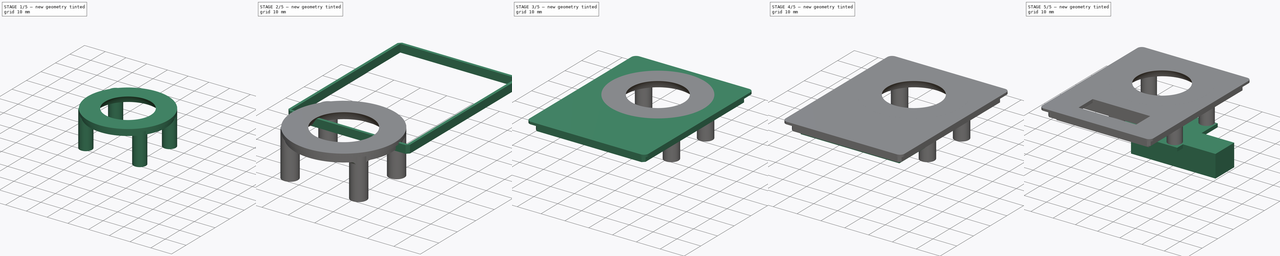
[diagram: build sequence overview — one tinted view per stage of 5, left to right]
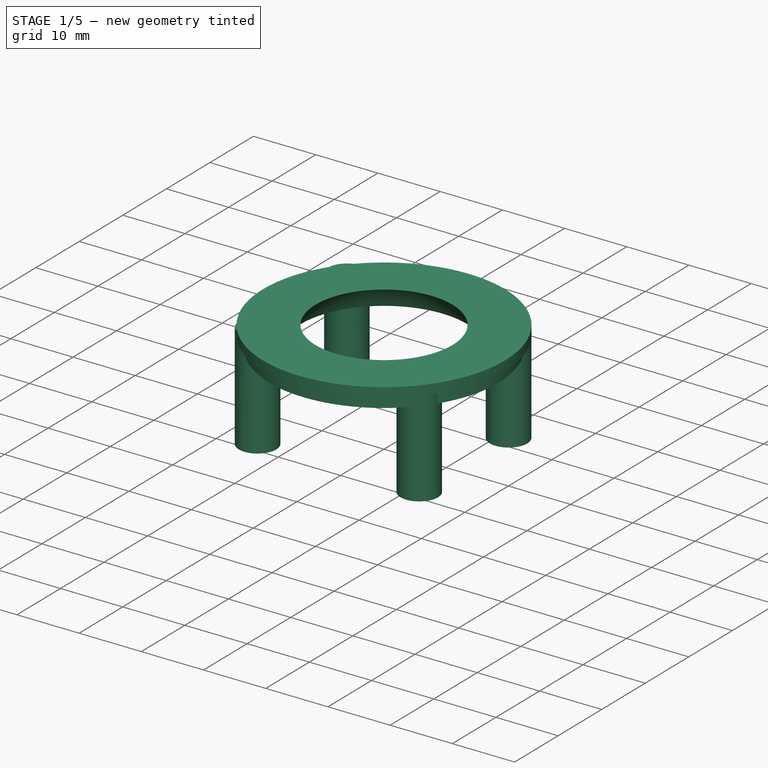
[diagram: stage 1 of 5 — iso view after this stage's code; geometry added in this stage tinted green]
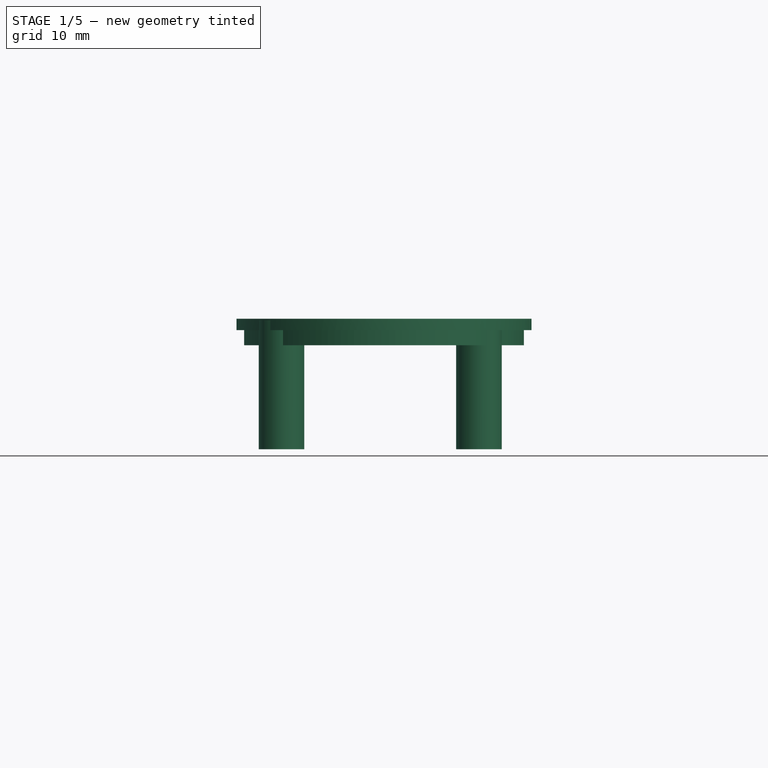
[diagram: stage 1 of 5 — front view after this stage's code; geometry added in this stage tinted green]
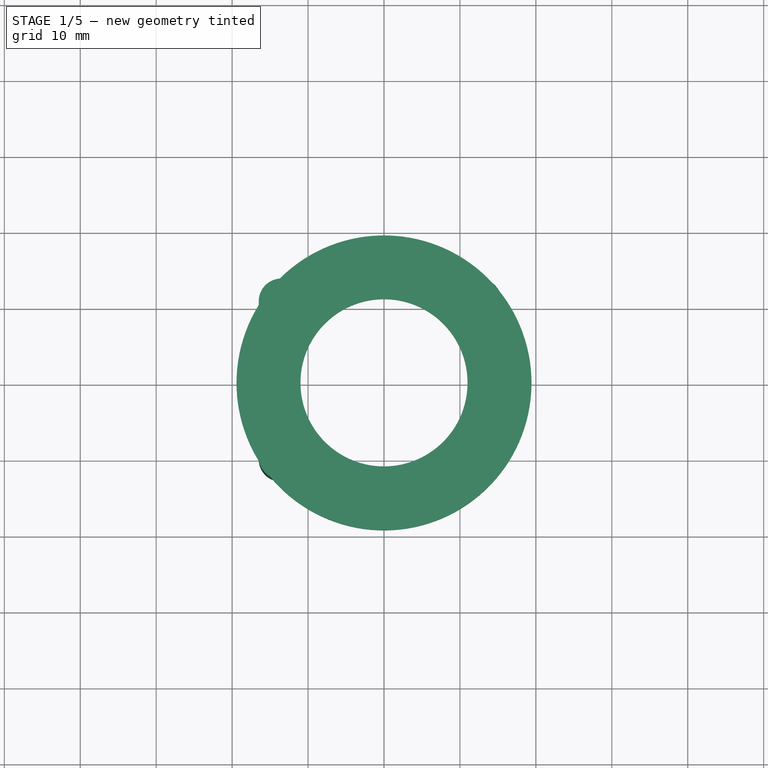
[diagram: stage 1 of 5 — top view after this stage's code; geometry added in this stage tinted green]
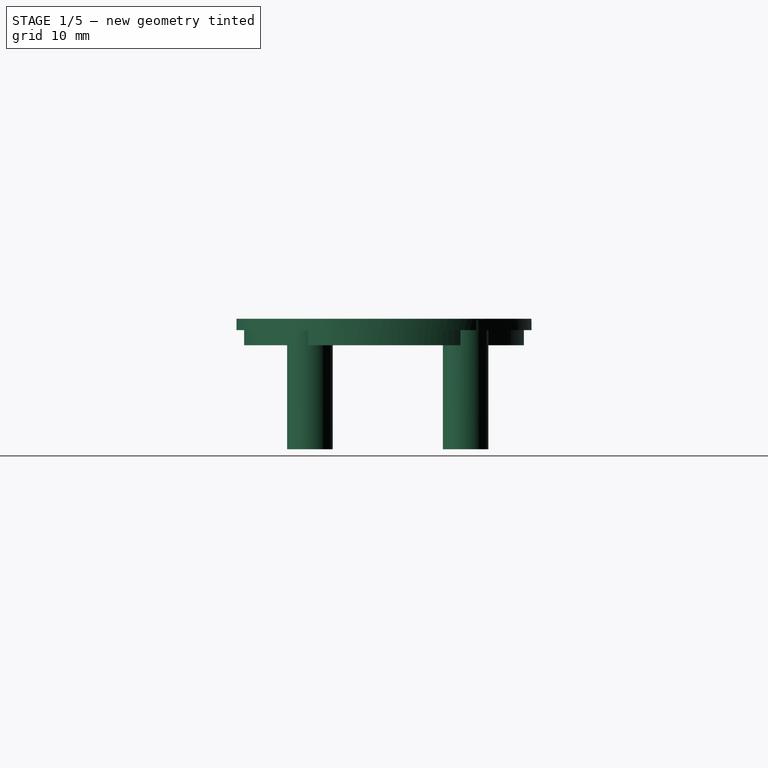
[diagram: stage 1 of 5 — right view after this stage's code; geometry added in this stage tinted green]
FCSTD DOCUMENT  (FreeCAD 0.18R4 (GitTag))
Label: DisplayJoystickMount
License: All rights reserved
LicenseURL: http://en.wikipedia.org/wiki/All_rights_reserved
objects: Sketcher::SketchObject×9, Part::Extrusion×7, App::Part×3, Part::MultiFuse×3, Part::Fillet×2, Part::FeaturePython×2, PartDesign::ShapeBinder×1, PartDesign::Line×1, Part::Revolution×1, Part::Chamfer×1, PartDesign::Body×1
note: 28 computed .brp shape members not serialized (recipe doc carries the construction recipe); baked Part::Feature solids carry a one-line shape summary decoded from their .brp

FEATURE [Sketcher::SketchObject] Sketch006
  MapMode = 5
  Support = -> [XY_Plane]
  sketch-geometry (5):
    g0: LineSegment StartX=-25 StartY=65 StartZ=0 EndX=25 EndY=65 EndZ=0
    g1: LineSegment StartX=25 StartY=65 StartZ=0 EndX=25 EndY=0 EndZ=0
    g2: LineSegment StartX=25 StartY=0 StartZ=0 EndX=-25 EndY=0 EndZ=0
    g3: LineSegment StartX=-25 StartY=0 StartZ=0 EndX=-25 EndY=65 EndZ=0
    g4: GeomPoint X=0 Y=65 Z=0
  constraints (13):
    c: Coincident(g0,g1)
    c: Coincident(g1,g2)
    c: Coincident(g2,g3)
    c: Coincident(g3,g0)
    c: Horizontal(g0)
    c: Horizontal(g2)
    c: Vertical(g1)
    c: Vertical(g3)
    c: DistanceX(g0,g0) = 50
    c: DistanceY(g3,g3) = 65
    c: PointOnObject(g4,g-2)
    c: Symmetric(g0,g0,g4)
    c: PointOnObject(g2,g-1)
FEATURE [PartDesign::ShapeBinder] CopyCompound001
  TraceSupport = false
FEATURE [PartDesign::Line] DatumLine
  AttacherType = Attacher::AttachEngineLine
  MapMode = 31
  Placement = pos=(-8e-16,5.98584,18.7949) rot=(0,0.807299,0.590143;3.14159rad)
  Support = -> [CopyCompound001,Sketch006]
FEATURE [App::Part] Part001  label="DisplayPart"
  Group = -> [Sketch004,Extrude002,Sketch003,Extrude003,Sketch005,Extrude004]
  Origin = -> Origin002
  Placement = pos=(-11.2,32.8,15.7) rot=(0,0,1;0rad)
FEATURE [Part::Revolution] Revolve
  Angle = 360
  Axis = (0,0,1)
  Base = (0,0,0)
  FaceMakerClass = Part::FaceMakerBullseye
  Solid = true
  Source = -> Sketch002
  Symmetric = false
FEATURE [Part::Extrusion] Extrude
  Base = -> Sketch001
  Dir = (0,0,1)
  DirMode = 2
  FaceMakerClass = Part::FaceMakerBullseye
  LengthFwd = 17
  LengthRev = 0
  Solid = true
  Symmetric = false
FEATURE [App::Part] Part  label="JoystickPart"
  Group = -> [Sketch001,Extrude,Sketch,Extrude001,Sketch002,Revolve]
  Origin = -> Origin001
FEATURE [Part::MultiFuse] Fusion
  Placement = pos=(0,0,-0.395) rot=(0,0,1;3.14159rad)
  Shapes = -> [Extrude,Revolve]
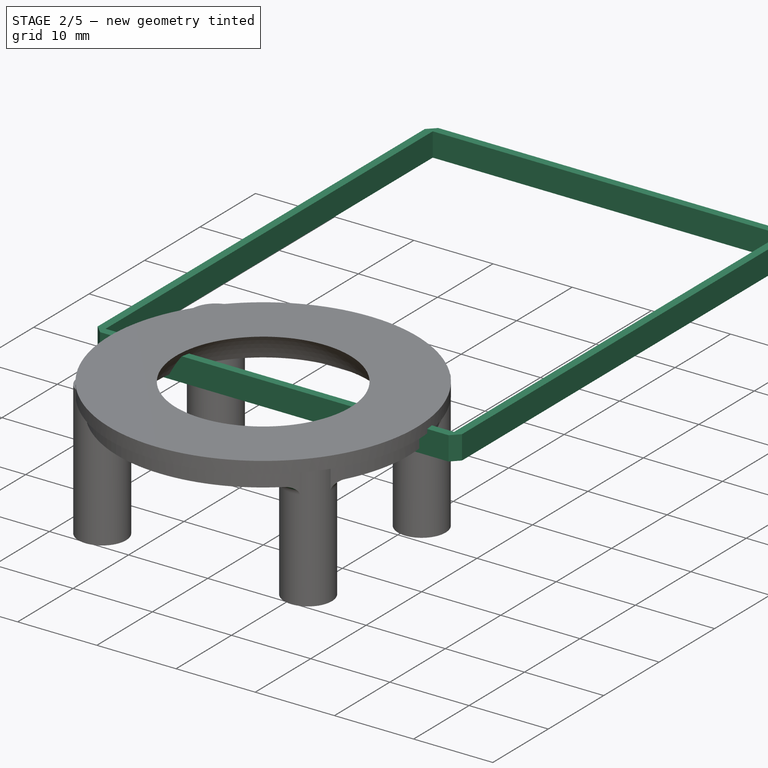
[diagram: stage 2 of 5 — iso view after this stage's code; geometry added in this stage tinted green]
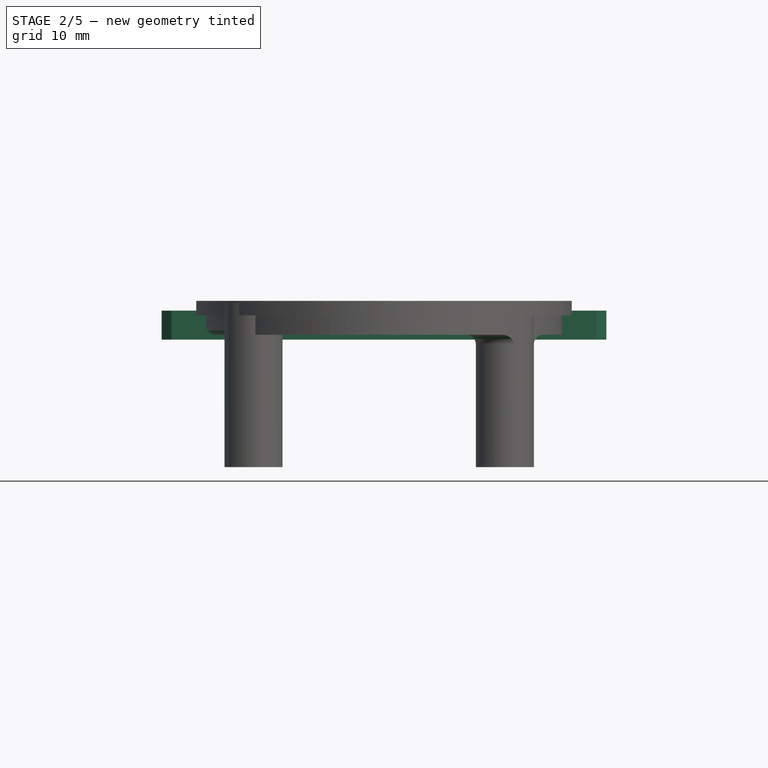
[diagram: stage 2 of 5 — front view after this stage's code; geometry added in this stage tinted green]
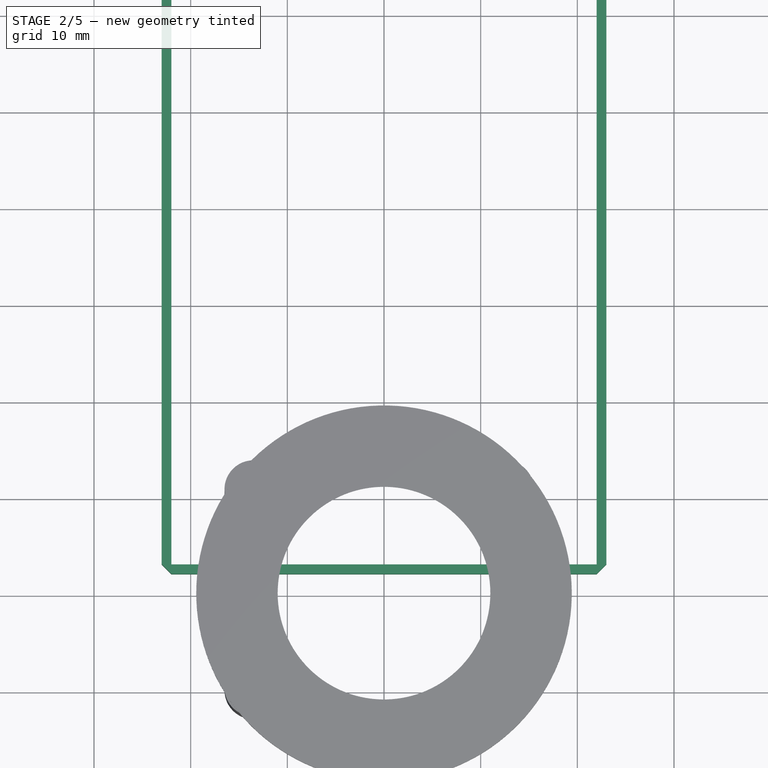
[diagram: stage 2 of 5 — top view after this stage's code; geometry added in this stage tinted green]
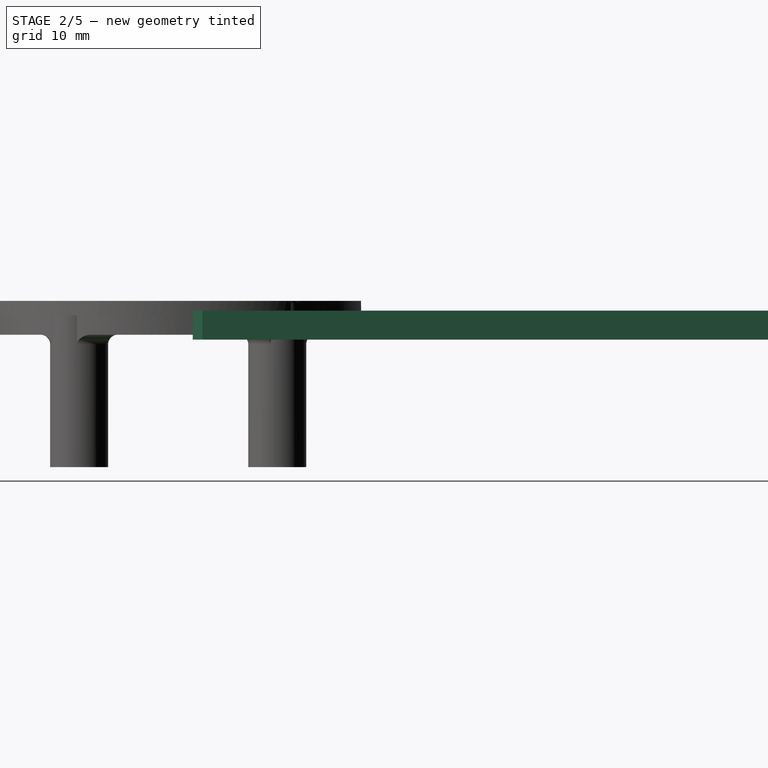
[diagram: stage 2 of 5 — right view after this stage's code; geometry added in this stage tinted green]
FEATURE [Sketcher::SketchObject] Sketch007
  MapMode = 5
  Support = -> [XY_Plane003]
  sketch-geometry (12):
    g0: LineSegment StartX=-23 StartY=63 StartZ=0 EndX=23 EndY=63 EndZ=0
    g1: LineSegment StartX=23 StartY=63 StartZ=0 EndX=23 EndY=2 EndZ=0
    g2: LineSegment StartX=23 StartY=2 StartZ=0 EndX=-23 EndY=2 EndZ=0
    g3: LineSegment StartX=-23 StartY=2 StartZ=0 EndX=-23 EndY=63 EndZ=0
    g4: GeomPoint X=0 Y=63 Z=0
    g5: LineSegment [constr] StartX=-23 StartY=2 StartZ=0 EndX=-23 EndY=0 EndZ=0
    g6: LineSegment StartX=-22 StartY=62 StartZ=0 EndX=22 EndY=62 EndZ=0
    g7: LineSegment StartX=22 StartY=62 StartZ=0 EndX=22 EndY=3 EndZ=0
    g8: LineSegment StartX=22 StartY=3 StartZ=0 EndX=-22 EndY=3 EndZ=0
    g9: LineSegment StartX=-22 StartY=3 StartZ=0 EndX=-22 EndY=62 EndZ=0
    g10: GeomPoint X=0 Y=62 Z=0
    g11: LineSegment [constr] StartX=-22 StartY=3 StartZ=0 EndX=-22 EndY=2 EndZ=0
  constraints (32):
    c: Coincident(g0,g1)
    c: Coincident(g1,g2)
    c: Coincident(g2,g3)
    c: Coincident(g3,g0)
    c: Horizontal(g0)
    c: Horizontal(g2)
    c: Vertical(g1)
    c: Vertical(g3)
    c: DistanceX(g0,g0) = 46
    c: DistanceY(g3,g3) = 61
    c: PointOnObject(g4,g-2)
    c: Symmetric(g0,g0,g4)
    c: Coincident(g5,g2)
    c: PointOnObject(g5,g-1)
    c: Vertical(g5)
    c: DistanceY(g5,g5) = 2
    c: Coincident(g6,g7)
    c: Coincident(g7,g8)
    c: Coincident(g8,g9)
    c: Coincident(g9,g6)
    c: Horizontal(g6)
    c: Horizontal(g8)
    c: Vertical(g7)
    c: Vertical(g9)
    c: PointOnObject(g10,g-2)
    c: Symmetric(g6,g6,g10)
    c: DistanceX(g6,g6) = 44
    c: Coincident(g11,g8)
    c: PointOnObject(g11,g2)
    c: Vertical(g11)
    c: DistanceY(g11,g11) = 1
    c: DistanceY(g9,g9) = 59
FEATURE [Part::Extrusion] Extrude006
  Base = -> Sketch007
  Dir = (0,0,1)
  DirMode = 2
  FaceMakerClass = Part::FaceMakerBullseye
  LengthFwd = -3
  LengthRev = 0
  Placement = pos=(0,0,15.8) rot=(0,0,1;0rad)
  Solid = true
  Symmetric = false
FEATURE [Part::Chamfer] Chamfer
  Base = -> Extrude006
  Edges = 4 edges r=1: [Edge1,Edge2,Edge5,Edge8]
FEATURE [Part::Fillet] Fillet001
  Base = -> Fusion
  Edges = 4 edges r=1: [Edge7,Edge9,Edge12,Edge15]
FEATURE [Sketcher::SketchObject] Sketch008
  MapMode = 5
  Support = -> [XY_Plane]
  sketch-geometry (6):
    g0: LineSegment StartX=0 StartY=0 StartZ=0 EndX=0 EndY=4 EndZ=0
    g1: LineSegment StartX=0 StartY=4 StartZ=0 EndX=1 EndY=4 EndZ=0
    g2: LineSegment StartX=1 StartY=4 StartZ=0 EndX=1 EndY=1 EndZ=0
    g3: LineSegment StartX=1 StartY=1 StartZ=0 EndX=4 EndY=1 EndZ=0
    g4: LineSegment StartX=4 StartY=1 StartZ=0 EndX=4 EndY=0 EndZ=0
    g5: LineSegment StartX=4 StartY=0 StartZ=0 EndX=0 EndY=0 EndZ=0
  constraints (17):
    c: Coincident(g0,g-1)
    c: Vertical(g0)
    c: Coincident(g1,g0)
    c: Horizontal(g1)
    c: Coincident(g2,g1)
    c: Vertical(g2)
    c: Coincident(g3,g2)
    c: Horizontal(g3)
    c: Coincident(g4,g3)
    c: PointOnObject(g4,g-1)
    c: Coincident(g5,g4)
    c: Coincident(g5,g0)
    c: DistanceX(g1,g1) = 1
    c: Equal(g1,g4)
    c: DistanceY(g0,g0) = 4
    c: Equal(g0,g5)
    c: Vertical(g4)
FEATURE [PartDesign::Body] Body
  Group = -> [Sketch008]
  Origin = -> Origin
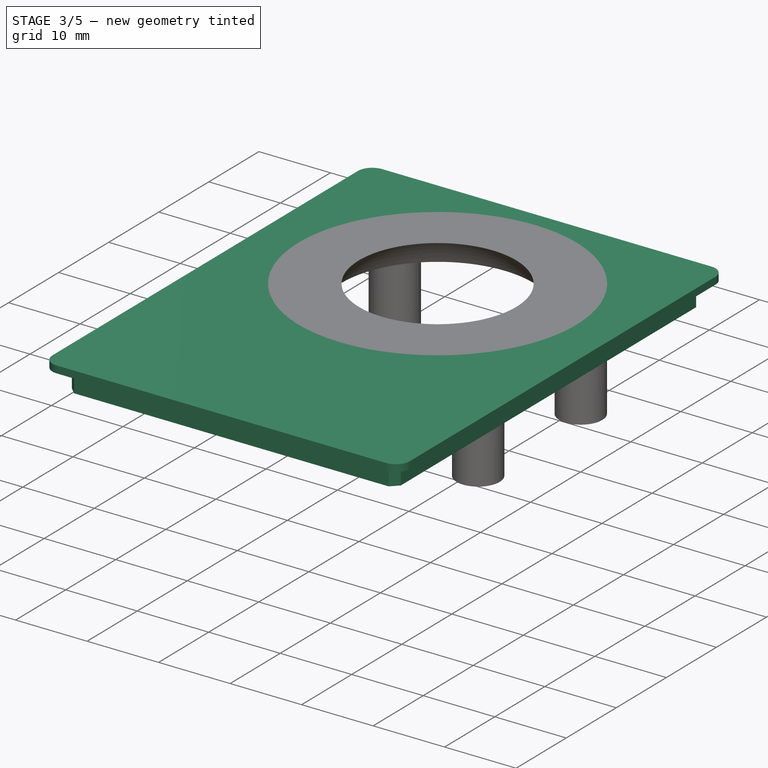
[diagram: stage 3 of 5 — iso view after this stage's code; geometry added in this stage tinted green]
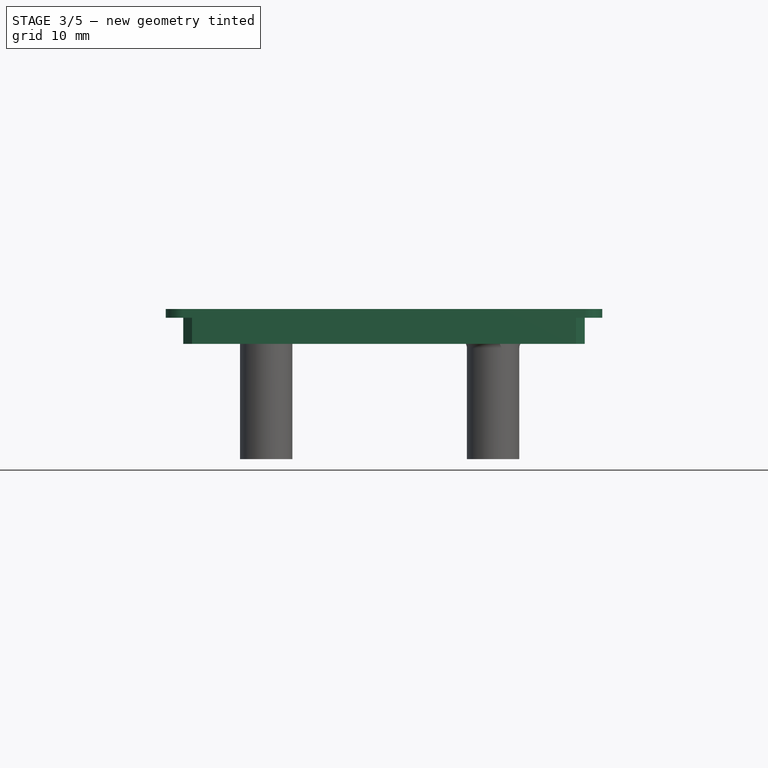
[diagram: stage 3 of 5 — front view after this stage's code; geometry added in this stage tinted green]
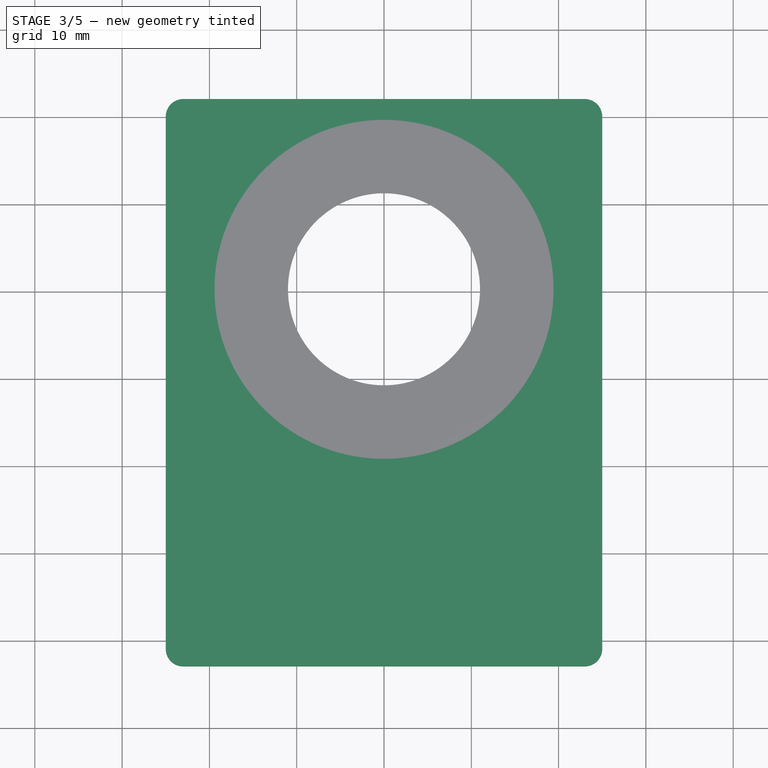
[diagram: stage 3 of 5 — top view after this stage's code; geometry added in this stage tinted green]
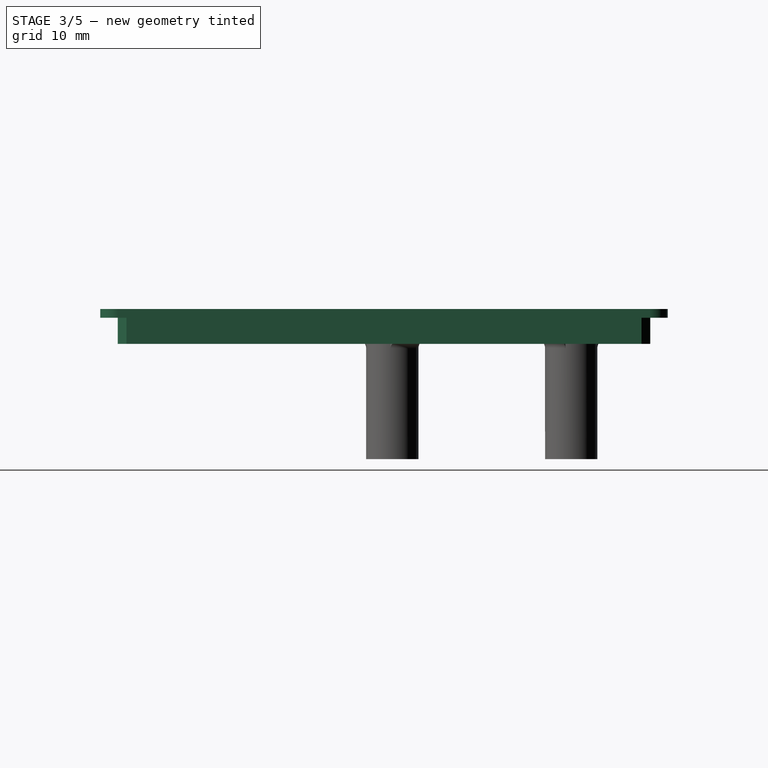
[diagram: stage 3 of 5 — right view after this stage's code; geometry added in this stage tinted green]
FEATURE [Part::Extrusion] Extrude005  label="FasciaOutline"
  Base = -> Sketch006
  Dir = (0,0,1)
  DirMode = 2
  FaceMakerClass = Part::FaceMakerBullseye
  LengthFwd = 1
  LengthRev = 0
  Placement = pos=(0,0,15.8) rot=(0,0,1;0rad)
  Solid = true
  Symmetric = false
FEATURE [App::Part] Part002  label="FasciaPart"
  Origin = -> Origin003
  Placement = pos=(0,-24,-0.1) rot=(0,0,1;0rad)
FEATURE [Part::Fillet] Fillet
  Base = -> Extrude005
  Edges = 4 edges r=2: [Edge1,Edge2,Edge5,Edge8]
FEATURE [Part::MultiFuse] Fusion002
  Placement = pos=(0,-43.2,0) rot=(0,0,1;0rad)
  Shapes = -> [Fillet,Chamfer]
FEATURE [Part::FeaturePython] Embed  # WARN: FeaturePython — macro-defined, semantics opaque (R4)
  Base = -> Fusion002
  Tolerance = 0
  Tool = -> Fusion
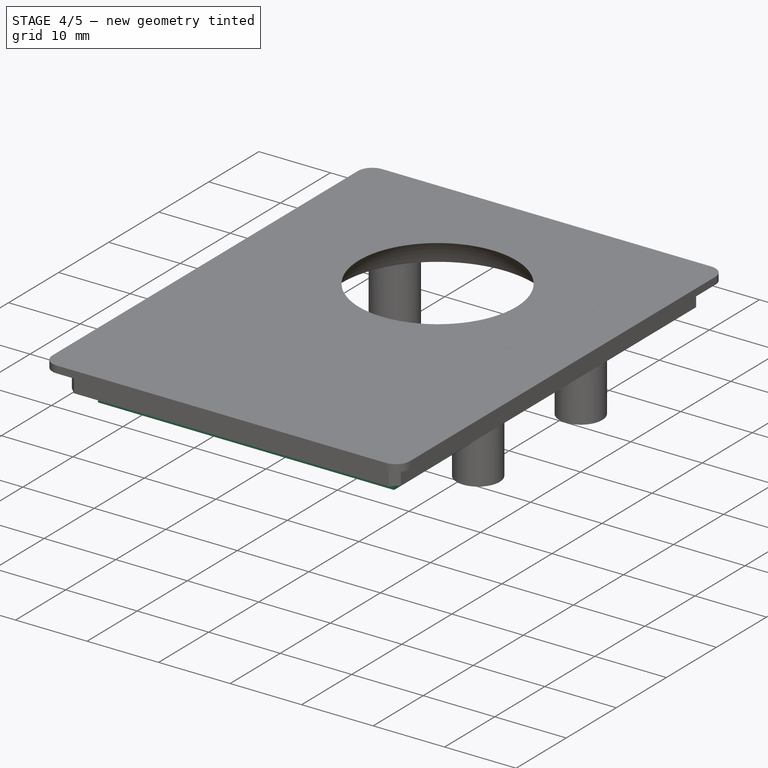
[diagram: stage 4 of 5 — iso view after this stage's code; geometry added in this stage tinted green]
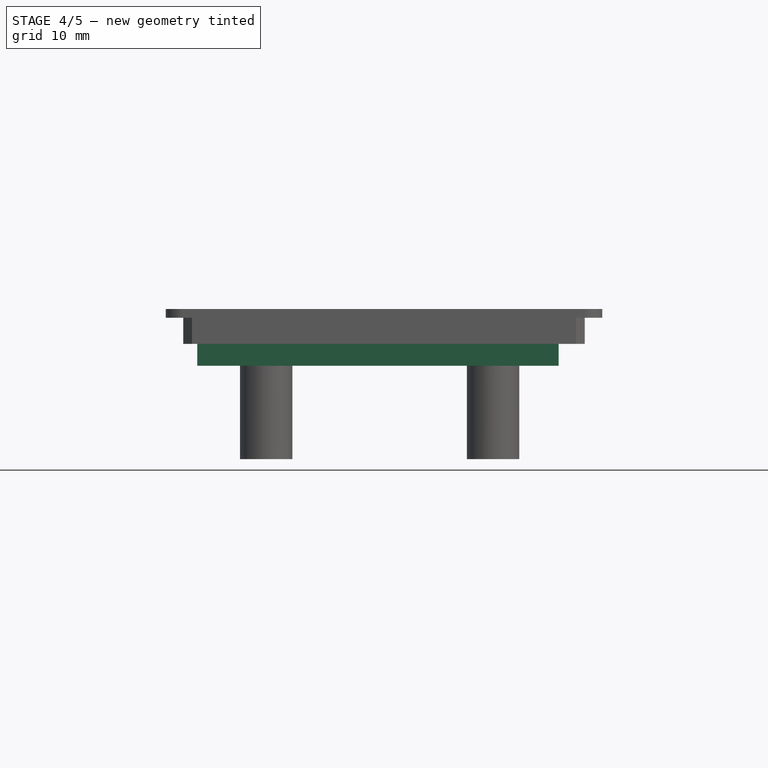
[diagram: stage 4 of 5 — front view after this stage's code; geometry added in this stage tinted green]
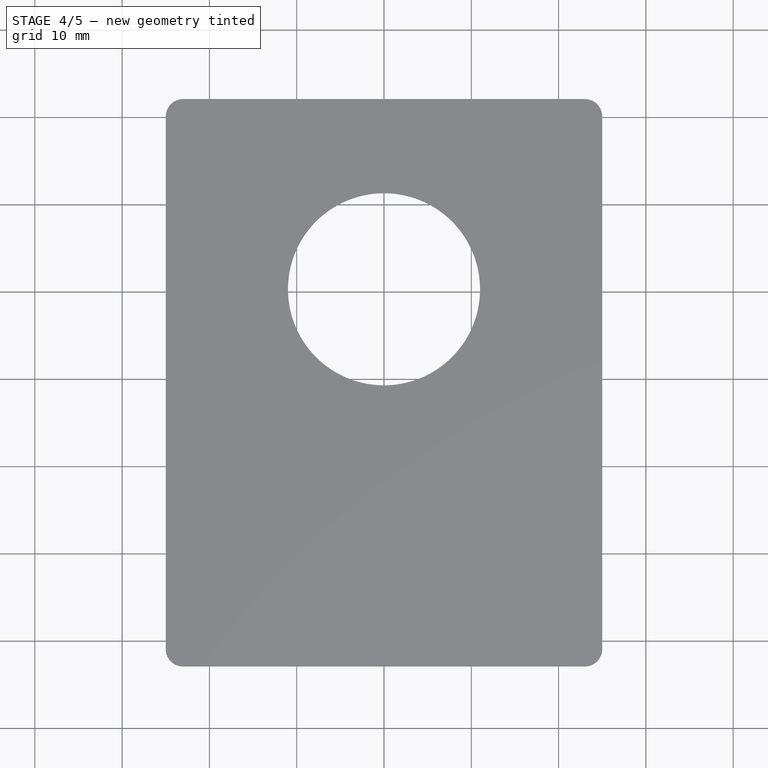
[diagram: stage 4 of 5 — top view after this stage's code; geometry added in this stage tinted green]
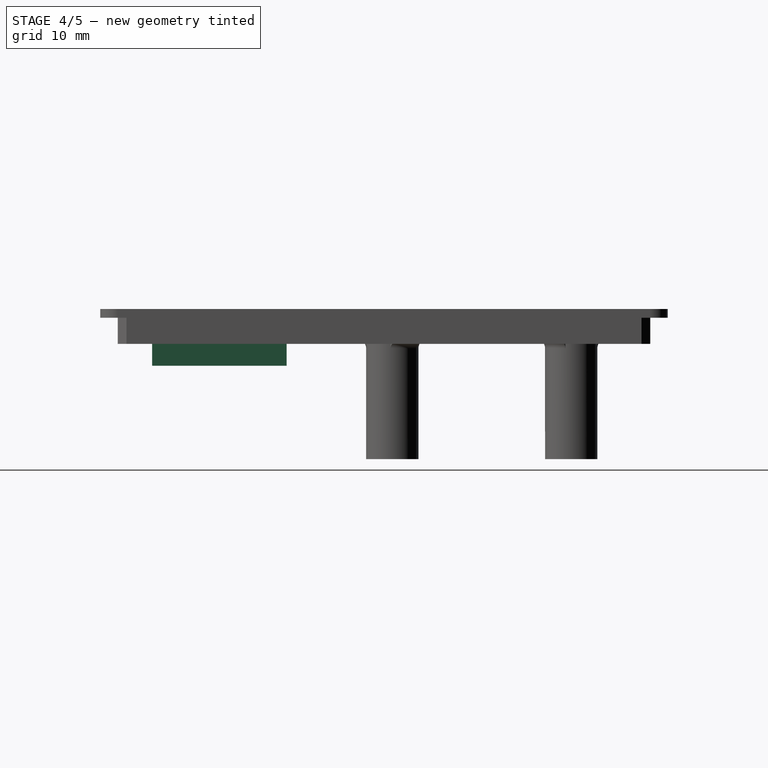
[diagram: stage 4 of 5 — right view after this stage's code; geometry added in this stage tinted green]
FEATURE [Sketcher::SketchObject] Sketch  label="PCB"
  MapMode = 5
  Support = -> [XY_Plane]
  sketch-geometry (14):
    g0: Circle CenterX=-12.5 CenterY=9.75 CenterZ=0 NormalX=0 NormalY=0 NormalZ=1 AngleXU=0 Radius=1.5
    g1: Circle CenterX=13.5 CenterY=9.75 CenterZ=0 NormalX=0 NormalY=0 NormalZ=1 AngleXU=0 Radius=1.5
    g2: Circle CenterX=13.5 CenterY=-10.75 CenterZ=0 NormalX=0 NormalY=0 NormalZ=1 AngleXU=0 Radius=1.5
    g3: Circle CenterX=-12.5 CenterY=-10.75 CenterZ=0 NormalX=0 NormalY=0 NormalZ=1 AngleXU=0 Radius=1.5
    g4: LineSegment [constr] StartX=-12.5 StartY=9.75 StartZ=0 EndX=-12.5 EndY=-10.75 EndZ=0
    g5: LineSegment [constr] StartX=-12.5 StartY=-10.75 StartZ=0 EndX=13.5 EndY=-10.75 EndZ=0
    g6: LineSegment [constr] StartX=13.5 StartY=-10.75 StartZ=0 EndX=13.5 EndY=9.75 EndZ=0
    g7: LineSegment [constr] StartX=13.5 StartY=9.75 StartZ=0 EndX=-12.5 EndY=9.75 EndZ=0
    g8: LineSegment StartX=-17.75 StartY=12.5 StartZ=0 EndX=16.25 EndY=12.5 EndZ=0
    g9: LineSegment StartX=16.25 StartY=12.5 StartZ=0 EndX=16.25 EndY=-13.5 EndZ=0
    g10: LineSegment StartX=16.25 StartY=-13.5 StartZ=0 EndX=-17.75 EndY=-13.5 EndZ=0
    g11: LineSegment StartX=-17.75 StartY=-13.5 StartZ=0 EndX=-17.75 EndY=12.5 EndZ=0
    g12: LineSegment [constr] StartX=-12.5 StartY=-10.75 StartZ=0 EndX=0 EndY=0 EndZ=0
    g13: LineSegment [constr] StartX=-12.5 StartY=9.75 StartZ=0 EndX=-17.75 EndY=12.5 EndZ=0
  constraints (36):
    c: Coincident(g4,g0)
    c: Coincident(g4,g3)
    c: Coincident(g5,g3)
    c: Coincident(g5,g2)
    c: Coincident(g6,g1)
    c: Coincident(g7,g0)
    c: Horizontal(g7)
    c: Horizontal(g5)
    c: Vertical(g4)
    c: Vertical(g6)
    c: Coincident(g6,g2)
    c: Coincident(g7,g1)
    c: Equal(g0,g3)
    c: Equal(g2,g1)
    c: Equal(g1,g0)
    c: Diameter(g0) = 3
    c: DistanceX(g7,g7) = 26
    c: DistanceY(g6,g6) = 20.5
    c: Coincident(g8,g9)
    c: Coincident(g9,g10)
    c: Coincident(g10,g11)
    c: Coincident(g11,g8)
    c: Horizontal(g8)
    c: Horizontal(g10)
    c: Vertical(g9)
    c: Vertical(g11)
    c: DistanceX(g10,g10) = 34
    c: DistanceY(g9,g9) = 26
    c: Coincident(g12,g3)
    c: Coincident(g12,g-1)
    c: DistanceX(g12,g12) = 12.5
    c: DistanceY(g12,g12) = 10.75
    c: Coincident(g13,g0)
    c: Coincident(g13,g8)
    c: DistanceY(g13,g13) = 2.75
    c: DistanceX(g13,g13) = 5.25
FEATURE [Sketcher::SketchObject] Sketch001  label="Standoffs"
  MapMode = 5
  Support = -> [XY_Plane]
  sketch-geometry (20):
    g0: LineSegment [constr] StartX=-12.5 StartY=9.75 StartZ=0 EndX=-12.5 EndY=-10.75 EndZ=0
    g1: LineSegment [constr] StartX=-12.5 StartY=-10.75 StartZ=0 EndX=13.5 EndY=-10.75 EndZ=0
    g2: LineSegment [constr] StartX=13.5 StartY=-10.75 StartZ=0 EndX=13.5 EndY=9.75 EndZ=0
    g3: LineSegment [constr] StartX=13.5 StartY=9.75 StartZ=0 EndX=-12.5 EndY=9.75 EndZ=0
    g4: LineSegment [constr] StartX=-17.75 StartY=12.5 StartZ=0 EndX=16.25 EndY=12.5 EndZ=0
    g5: LineSegment [constr] StartX=16.25 StartY=12.5 StartZ=0 EndX=16.25 EndY=-13.5 EndZ=0
    g6: LineSegment [constr] StartX=16.25 StartY=-13.5 StartZ=0 EndX=-17.75 EndY=-13.5 EndZ=0
    g7: LineSegment [constr] StartX=-17.75 StartY=-13.5 StartZ=0 EndX=-17.75 EndY=12.5 EndZ=0
    g8: LineSegment [constr] StartX=-12.5 StartY=-10.75 StartZ=0 EndX=0 EndY=0 EndZ=0
    g9: LineSegment [constr] StartX=-12.5 StartY=9.75 StartZ=0 EndX=-17.75 EndY=12.5 EndZ=0
    g10: Circle CenterX=-12.5 CenterY=9.75 CenterZ=0 NormalX=0 NormalY=0 NormalZ=1 AngleXU=0 Radius=1.25
    g11: Circle CenterX=-12.5 CenterY=-10.75 CenterZ=0 NormalX=0 NormalY=0 NormalZ=1 AngleXU=0 Radius=1.25
    g12: Circle CenterX=13.5 CenterY=-10.75 CenterZ=0 NormalX=0 NormalY=0 NormalZ=1 AngleXU=0 Radius=1.25
    g13: Circle CenterX=13.5 CenterY=9.75 CenterZ=0 NormalX=0 NormalY=0 NormalZ=1 AngleXU=0 Radius=1.25
    g14: Circle [constr] CenterX=0 CenterY=0 CenterZ=0 NormalX=0 NormalY=0 NormalZ=1 AngleXU=0 Radius=13.5
    g15: ArcOfCircle CenterX=0 CenterY=0 CenterZ=0 NormalX=0 NormalY=0 NormalZ=1 AngleXU=0 Radius=13.5 StartAngle=2.35185 EndAngle=2.60648
    g16: ArcOfCircle CenterX=-12.5 CenterY=9.75 CenterZ=0 NormalX=0 NormalY=0 NormalZ=1 AngleXU=0 Radius=3 StartAngle=6.22892 EndAngle=11.2958
    g17: Circle CenterX=13.5 CenterY=-10.75 CenterZ=0 NormalX=0 NormalY=0 NormalZ=1 AngleXU=0 Radius=3
    g18: Circle CenterX=13.5 CenterY=9.75 CenterZ=0 NormalX=0 NormalY=0 NormalZ=1 AngleXU=0 Radius=3
    g19: Circle CenterX=-12.5 CenterY=-10.75 CenterZ=0 NormalX=0 NormalY=0 NormalZ=1 AngleXU=0 Radius=3
  constraints (50):
    c: Horizontal(g3)
    c: Horizontal(g1)
    c: Vertical(g0)
    c: Vertical(g2)
    c: DistanceX(g3,g3) = 26
    c: DistanceY(g2,g2) = 20.5
    c: Coincident(g4,g5)
    c: Coincident(g5,g6)
    c: Coincident(g6,g7)
    c: Coincident(g7,g4)
    c: Horizontal(g4)
    c: Horizontal(g6)
    c: Vertical(g5)
    c: Vertical(g7)
    c: DistanceX(g6,g6) = 34
    c: DistanceY(g5,g5) = 26
    c: Coincident(g8,g-1)
    c: DistanceX(g8,g8) = 12.5
    c: DistanceY(g8,g8) = 10.75
    c: Coincident(g9,g4)
    c: DistanceY(g9,g9) = 2.75
    c: DistanceX(g9,g9) = 5.25
    c: Equal(g10,g11)
    c: Equal(g12,g13)
    c: Equal(g10,g13)
    c: Diameter(g13) = 2.5
    c: Coincident(g14,g-1)
    c: Diameter(g14) = 27
    c: Coincident(g15,g-1)
    c: PointOnObject(g15,g14)
    c: Coincident(g16,g10)
    c: Coincident(g16,g15)
    c: Coincident(g16,g15)
    c: Coincident(g1,g2)
    c: Coincident(g1,g0)
    c: Coincident(g0,g8)
    c: Coincident(g2,g3)
    c: Coincident(g0,g3)
    c: Coincident(g10,g0)
    c: Coincident(g13,g2)
    c: Coincident(g11,g0)
    c: Coincident(g12,g1)
    c: Coincident(g9,g10)
    c: Coincident(g17,g12)
    c: Coincident(g18,g13)
    c: Equal(g18,g17)
    c: Coincident(g19,g11)
    c: Equal(g17,g19)
    c: Radius(g19) = 3
    c: Equal(g16,g19)
FEATURE [Sketcher::SketchObject] Sketch002  label="Fascia"
  MapMode = 5
  Placement = pos=(0,0,0) rot=(1,0,0;1.5708rad)
  sketch-geometry (18):
    g0: ArcOfCircle [constr] CenterX=0 CenterY=7.00001 CenterZ=0 NormalX=0 NormalY=0 NormalZ=1 AngleXU=0 Radius=14 StartAngle=6.28318 EndAngle=9.42478
    g1: LineSegment [constr] StartX=-14 StartY=7 StartZ=0 EndX=14 EndY=7 EndZ=0
    g2: LineSegment [constr] StartX=14 StartY=7 StartZ=0 EndX=14 EndY=0 EndZ=0
    g3: LineSegment [constr] StartX=14 StartY=0 StartZ=0 EndX=-14 EndY=0 EndZ=0
    g4: LineSegment [constr] StartX=-14 StartY=0 StartZ=0 EndX=-14 EndY=7 EndZ=0
    g5: ArcOfCircle CenterX=0 CenterY=7.00001 CenterZ=0 NormalX=0 NormalY=0 NormalZ=1 AngleXU=0 Radius=15 StartAngle=0.46289 EndAngle=0.747584
    g6: ArcOfCircle [constr] CenterX=0 CenterY=7.00001 CenterZ=0 NormalX=0 NormalY=0 NormalZ=1 AngleXU=0 Radius=15 StartAngle=2.39401 EndAngle=2.6787
    g7: LineSegment [constr] StartX=-11 StartY=17.198 StartZ=0 EndX=-19.4215 EndY=17.198 EndZ=0
    g8: LineSegment StartX=11 StartY=17.198 StartZ=0 EndX=19.4215 EndY=17.198 EndZ=0
    g9: LineSegment [constr] StartX=-19.4215 StartY=17.198 StartZ=0 EndX=-19.4215 EndY=15.698 EndZ=0
    g10: LineSegment StartX=13.4215 StartY=13.698 StartZ=0 EndX=18.4215 EndY=13.698 EndZ=0
    g11: LineSegment StartX=19.4215 StartY=15.698 StartZ=0 EndX=19.4215 EndY=17.198 EndZ=0
    g12: LineSegment [constr] StartX=-18.4215 StartY=13.698 StartZ=0 EndX=-13.4215 EndY=13.698 EndZ=0
    g13: LineSegment [constr] StartX=-11 StartY=17.198 StartZ=0 EndX=11 EndY=17.198 EndZ=0
    g14: LineSegment [constr] StartX=-19.4215 StartY=15.698 StartZ=0 EndX=-18.4215 EndY=15.698 EndZ=0
    g15: LineSegment [constr] StartX=-18.4215 StartY=15.698 StartZ=0 EndX=-18.4215 EndY=13.698 EndZ=0
    g16: LineSegment StartX=18.4215 StartY=13.698 StartZ=0 EndX=18.4215 EndY=15.698 EndZ=0
    g17: LineSegment StartX=18.4215 StartY=15.698 StartZ=0 EndX=19.4215 EndY=15.698 EndZ=0
  constraints (54):
    c: Radius(g0) = 14
    c: Coincident(g1,g2)
    c: Coincident(g2,g3)
    c: Coincident(g3,g4)
    c: Horizontal(g1)
    c: Horizontal(g3)
    c: Vertical(g2)
    c: Vertical(g4)
    c: DistanceY(g4,g4) = 7
    c: Coincident(g0,g1)
    c: PointOnObject(g0,g1)
    c: Coincident(g0,g4)
    c: Tangent(g0,g2)
    c: Tangent(g0,g4)
    c: Coincident(g7,g6)
    c: Horizontal(g7)
    c: Coincident(g8,g5)
    c: Horizontal(g8)
    c: Coincident(g9,g7)
    c: Vertical(g9)
    c: Coincident(g10,g5)
    c: Horizontal(g10)
    c: Coincident(g11,g8)
    c: Vertical(g11)
    c: Coincident(g12,g6)
    c: Horizontal(g12)
    c: Equal(g7,g8)
    c: Radius(g5) = 15
    c: Equal(g5,g6)
    c: Coincident(g13,g6)
    c: Coincident(g13,g5)
    c: DistanceX(g13,g13) = 22
    c: DistanceY(g11,g11) = 1.5
    c: Coincident(g14,g9)
    c: Horizontal(g14)
    c: Coincident(g15,g14)
    c: Coincident(g15,g12)
    c: Vertical(g15)
    c: Horizontal(g13)
    c: Vertical(g16)
    c: Coincident(g17,g16)
    c: Coincident(g17,g11)
    c: Coincident(g10,g16)
    c: Horizontal(g17)
    c: Equal(g15,g16)
    c: Equal(g11,g9)
    c: DistanceY(g16,g16) = 2
    c: DistanceX(g10,g10) = 5
    c: Equal(g10,g12)
    c: DistanceX(g17,g17) = 1
    c: PointOnObject(g0,g-2)
    c: PointOnObject(g3,g-1)
    c: Coincident(g6,g0)
    c: Coincident(g5,g6)
FEATURE [Sketcher::SketchObject] Sketch003  label="DisplayOutline"
  MapMode = 5
  Support = -> [XY_Plane]
  sketch-geometry (16):
    g0: LineSegment [constr] StartX=0 StartY=0 StartZ=0 EndX=22.38 EndY=0 EndZ=0
    g1: LineSegment [constr] StartX=22.38 StartY=0 StartZ=0 EndX=22.38 EndY=-5.52 EndZ=0
    g2: LineSegment [constr] StartX=22.38 StartY=-5.52 StartZ=0 EndX=0 EndY=-5.52 EndZ=0
    g3: LineSegment [constr] StartX=0 StartY=-5.52 StartZ=0 EndX=0 EndY=0 EndZ=0
    g4: LineSegment StartX=-7.1 StartY=2.16 StartZ=0 EndX=30.9 EndY=2.16 EndZ=0
    g5: LineSegment StartX=30.9 StartY=2.16 StartZ=0 EndX=30.9 EndY=-9.84 EndZ=0
    g6: LineSegment StartX=30.9 StartY=-9.84 StartZ=0 EndX=-7.1 EndY=-9.84 EndZ=0
    g7: LineSegment StartX=-7.1 StartY=-9.84 StartZ=0 EndX=-7.1 EndY=2.16 EndZ=0
    g8: LineSegment [constr] StartX=0 StartY=0 StartZ=0 EndX=-7.1 EndY=2.16 EndZ=0
    g9: LineSegment [constr] StartX=-2.1 StartY=2.16 StartZ=0 EndX=27.9 EndY=2.16 EndZ=0
    g10: LineSegment [constr] StartX=27.9 StartY=2.16 StartZ=0 EndX=27.9 EndY=-9.84 EndZ=0
    g11: LineSegment [constr] StartX=27.9 StartY=-9.84 StartZ=0 EndX=-2.1 EndY=-9.84 EndZ=0
    g12: LineSegment [constr] StartX=-2.1 StartY=-9.84 StartZ=0 EndX=-2.1 EndY=2.16 EndZ=0
    g13: LineSegment [constr] StartX=-7.1 StartY=-9.84 StartZ=0 EndX=-2.1 EndY=-9.84 EndZ=0
    g14: Circle CenterX=11.19 CenterY=-2.76 CenterZ=0 NormalX=0 NormalY=0 NormalZ=1 AngleXU=0 Radius=1
    g15: LineSegment [constr] StartX=11.19 StartY=0 StartZ=0 EndX=11.19 EndY=-5.52 EndZ=0
  constraints (44):
    c: Coincident(g0,g1)
    c: Coincident(g1,g2)
    c: Coincident(g2,g3)
    c: Coincident(g3,g0)
    c: Horizontal(g0)
    c: Horizontal(g2)
    c: Vertical(g1)
    c: Vertical(g3)
    c: Coincident(g0,g-1)
    c: DistanceX(g2,g2) = 22.38
    c: DistanceY(g1,g1) = 5.52
    c: Coincident(g4,g5)
    c: Coincident(g5,g6)
    c: Coincident(g6,g7)
    c: Coincident(g7,g4)
    c: Horizontal(g4)
    c: Horizontal(g6)
    c: Vertical(g5)
    c: Vertical(g7)
    c: Coincident(g8,g-1)
    c: Coincident(g8,g4)
    c: DistanceX(g8,g8) = 7.1
    c: DistanceY(g8,g8) = 2.16
    c: DistanceY(g5,g5) = 12
    c: DistanceX(g6,g6) = 38
    c: Coincident(g9,g10)
    c: Coincident(g10,g11)
    c: Coincident(g11,g12)
    c: Coincident(g12,g9)
    c: Horizontal(g9)
    c: Horizontal(g11)
    c: Vertical(g10)
    c: Vertical(g12)
    c: DistanceX(g9,g9) = 30
    c: Coincident(g13,g6)
    c: Coincident(g13,g11)
    c: DistanceX(g13,g13) = 5
    c: DistanceY(g10,g10) = 12
    c: Horizontal(g13)
    c: Radius(g14) = 1
    c: PointOnObject(g15,g2)
    c: Vertical(g15)
    c: Symmetric(g0,g0,g15)
    c: Symmetric(g15,g15,g14)
FEATURE [Sketcher::SketchObject] Sketch004  label="DisplayOutline001"
  MapMode = 5
  Support = -> [XY_Plane]
  sketch-geometry (28):
    g0: LineSegment [constr] StartX=0 StartY=0 StartZ=0 EndX=22.38 EndY=0 EndZ=0
    g1: LineSegment [constr] StartX=22.38 StartY=0 StartZ=0 EndX=22.38 EndY=-5.52 EndZ=0
    g2: LineSegment [constr] StartX=22.38 StartY=-5.52 StartZ=0 EndX=0 EndY=-5.52 EndZ=0
    g3: LineSegment [constr] StartX=0 StartY=-5.52 StartZ=0 EndX=0 EndY=0 EndZ=0
    g4: LineSegment [constr] StartX=-7.1 StartY=2.16 StartZ=0 EndX=30.9 EndY=2.16 EndZ=0
    g5: LineSegment [constr] StartX=30.9 StartY=2.16 StartZ=0 EndX=30.9 EndY=-9.84 EndZ=0
    g6: LineSegment [constr] StartX=30.9 StartY=-9.84 StartZ=0 EndX=-7.1 EndY=-9.84 EndZ=0
    g7: LineSegment [constr] StartX=-7.1 StartY=-9.84 StartZ=0 EndX=-7.1 EndY=2.16 EndZ=0
    g8: LineSegment [constr] StartX=0 StartY=0 StartZ=0 EndX=-7.1 EndY=2.16 EndZ=0
    g9: LineSegment [constr] StartX=-2.1 StartY=2.16 StartZ=0 EndX=27.9 EndY=2.16 EndZ=0
    g10: LineSegment [constr] StartX=27.9 StartY=2.16 StartZ=0 EndX=27.9 EndY=-9.84 EndZ=0
    g11: LineSegment [constr] StartX=27.9 StartY=-9.84 StartZ=0 EndX=-2.1 EndY=-9.84 EndZ=0
    g12: LineSegment [constr] StartX=-2.1 StartY=-9.84 StartZ=0 EndX=-2.1 EndY=2.16 EndZ=0
    g13: LineSegment [constr] StartX=-7.1 StartY=-9.84 StartZ=0 EndX=-2.1 EndY=-9.84 EndZ=0
    g14: LineSegment StartX=-1.75 StartY=1.75 StartZ=0 EndX=24.13 EndY=1.75 EndZ=0
    g15: LineSegment StartX=24.13 StartY=1.75 StartZ=0 EndX=24.13 EndY=-7.27 EndZ=0
    g16: LineSegment StartX=24.13 StartY=-7.27 StartZ=0 EndX=-1.75 EndY=-7.27 EndZ=0
    g17: LineSegment StartX=-1.75 StartY=-7.27 StartZ=0 EndX=-1.75 EndY=1.75 EndZ=0
    g18: LineSegment [constr] StartX=22.38 StartY=-5.52 StartZ=0 EndX=24.13 EndY=-7.27 EndZ=0
    g19: LineSegment [constr] StartX=0 StartY=0 StartZ=0 EndX=-1.75 EndY=1.75 EndZ=0
    g20: LineSegment StartX=-11.75 StartY=6.75 StartZ=0 EndX=34.13 EndY=6.75 EndZ=0
    g21: LineSegment StartX=34.13 StartY=6.75 StartZ=0 EndX=34.13 EndY=-12.27 EndZ=0
    g22: LineSegment StartX=34.13 StartY=-12.27 StartZ=0 EndX=-11.75 EndY=-12.27 EndZ=0
    g23: LineSegment StartX=-11.75 StartY=-12.27 StartZ=0 EndX=-11.75 EndY=6.75 EndZ=0
    g24: LineSegment [constr] StartX=24.13 StartY=-7.27 StartZ=0 EndX=34.13 EndY=-7.27 EndZ=0
    g25: LineSegment [constr] StartX=24.13 StartY=-7.27 StartZ=0 EndX=24.13 EndY=-12.27 EndZ=0
    g26: LineSegment [constr] StartX=-1.75 StartY=1.75 StartZ=0 EndX=-1.75 EndY=6.75 EndZ=0
    g27: LineSegment [constr] StartX=-1.75 StartY=1.75 StartZ=0 EndX=-11.75 EndY=1.75 EndZ=0
  constraints (79):
    c: Coincident(g0,g1)
    c: Coincident(g1,g2)
    c: Coincident(g2,g3)
    c: Coincident(g3,g0)
    c: Horizontal(g0)
    c: Horizontal(g2)
    c: Vertical(g1)
    c: Vertical(g3)
    c: Coincident(g0,g-1)
    c: DistanceX(g2,g2) = 22.38
    c: DistanceY(g1,g1) = 5.52
    c: Coincident(g4,g5)
    c: Coincident(g5,g6)
    c: Coincident(g6,g7)
    c: Coincident(g7,g4)
    c: Horizontal(g4)
    c: Horizontal(g6)
    c: Vertical(g5)
    c: Vertical(g7)
    c: Coincident(g8,g-1)
    c: Coincident(g8,g4)
    c: DistanceX(g8,g8) = 7.1
    c: DistanceY(g8,g8) = 2.16
    c: DistanceY(g5,g5) = 12
    c: DistanceX(g6,g6) = 38
    c: Coincident(g9,g10)
    c: Coincident(g10,g11)
    c: Coincident(g11,g12)
    c: Coincident(g12,g9)
    c: Horizontal(g9)
    c: Horizontal(g11)
    c: Vertical(g10)
    c: Vertical(g12)
    c: DistanceX(g9,g9) = 30
    c: Coincident(g13,g6)
    c: Coincident(g13,g11)
    c: DistanceX(g13,g13) = 5
    c: DistanceY(g10,g10) = 12
    c: Horizontal(g13)
    c: Coincident(g14,g15)
    c: Coincident(g15,g16)
    c: Coincident(g16,g17)
    c: Coincident(g17,g14)
    c: Horizontal(g14)
    c: Horizontal(g16)
    c: Vertical(g15)
    c: Vertical(g17)
    c: Coincident(g18,g1)
    c: Coincident(g19,g-1)
    c: Coincident(g19,g14)
    c: Equal(g19,g18)
    c: Coincident(g18,g15)
    c: DistanceY(g19,g19) = 1.75
    c: DistanceX(g19,g19) = 1.75
    c: DistanceY(g18,g18) = 1.75
    c: Coincident(g20,g21)
    c: Coincident(g21,g22)
    c: Coincident(g22,g23)
    c: Coincident(g23,g20)
    c: Horizontal(g20)
    c: Horizontal(g22)
    c: Vertical(g21)
    c: Vertical(g23)
    c: Coincident(g24,g15)
    c: PointOnObject(g24,g21)
    c: Horizontal(g24)
    c: Coincident(g25,g15)
    c: PointOnObject(g25,g22)
    c: Vertical(g25)
    c: Coincident(g26,g14)
    c: PointOnObject(g26,g20)
    c: Vertical(g26)
    c: Coincident(g27,g14)
    c: PointOnObject(g27,g23)
    c: Horizontal(g27)
    c: DistanceY(g25,g25) = 5
    c: Equal(g26,g25)
    c: DistanceX(g27,g27) = 10
    c: Equal(g27,g24)
FEATURE [Part::Extrusion] Extrude002  label="DisplayFascia"
  Base = -> Sketch004
  Dir = (0,0,1)
  DirMode = 2
  FaceMakerClass = Part::FaceMakerBullseye
  LengthFwd = 1.5
  LengthRev = 0
  Solid = true
  Symmetric = false
FEATURE [Sketcher::SketchObject] Sketch005  label="DisplayOutline002"
  MapMode = 5
  Support = -> [XY_Plane]
  sketch-geometry (22):
    g0: LineSegment [constr] StartX=0 StartY=0 StartZ=0 EndX=22.38 EndY=0 EndZ=0
    g1: LineSegment [constr] StartX=22.38 StartY=0 StartZ=0 EndX=22.38 EndY=-5.52 EndZ=0
    g2: LineSegment [constr] StartX=22.38 StartY=-5.52 StartZ=0 EndX=0 EndY=-5.52 EndZ=0
    g3: LineSegment [constr] StartX=0 StartY=-5.52 StartZ=0 EndX=0 EndY=0 EndZ=0
    g4: LineSegment StartX=-7.3 StartY=2.36 StartZ=0 EndX=31.1 EndY=2.36 EndZ=0
    g5: LineSegment StartX=31.1 StartY=2.36 StartZ=0 EndX=31.1 EndY=-10.04 EndZ=0
    g6: LineSegment StartX=31.1 StartY=-10.04 StartZ=0 EndX=-7.3 EndY=-10.04 EndZ=0
    g7: LineSegment StartX=-7.3 StartY=-10.04 StartZ=0 EndX=-7.3 EndY=2.36 EndZ=0
    g8: LineSegment [constr] StartX=0 StartY=0 StartZ=0 EndX=-7.3 EndY=2.36 EndZ=0
    g9: LineSegment [constr] StartX=-2.1 StartY=1.96 StartZ=0 EndX=27.9 EndY=1.96 EndZ=0
    g10: LineSegment [constr] StartX=27.9 StartY=1.96 StartZ=0 EndX=27.9 EndY=-10.04 EndZ=0
    g11: LineSegment [constr] StartX=27.9 StartY=-10.04 StartZ=0 EndX=-2.1 EndY=-10.04 EndZ=0
    g12: LineSegment [constr] StartX=-2.1 StartY=-10.04 StartZ=0 EndX=-2.1 EndY=1.96 EndZ=0
    g13: LineSegment [constr] StartX=-7.3 StartY=-10.04 StartZ=0 EndX=-2.1 EndY=-10.04 EndZ=0
    g14: LineSegment StartX=-8.8 StartY=3.86 StartZ=0 EndX=32.6 EndY=3.86 EndZ=0
    g15: LineSegment StartX=32.6 StartY=3.86 StartZ=0 EndX=32.6 EndY=-11.54 EndZ=0
    g16: LineSegment StartX=32.6 StartY=-11.54 StartZ=0 EndX=-8.8 EndY=-11.54 EndZ=0
    g17: LineSegment StartX=-8.8 StartY=-11.54 StartZ=0 EndX=-8.8 EndY=3.86 EndZ=0
    g18: LineSegment [constr] StartX=-7.3 StartY=2.36 StartZ=0 EndX=-7.3 EndY=3.86 EndZ=0
    g19: LineSegment [constr] StartX=-7.3 StartY=2.36 StartZ=0 EndX=-8.8 EndY=2.36 EndZ=0
    g20: LineSegment [constr] StartX=31.1 StartY=-10.04 StartZ=0 EndX=31.1 EndY=-11.54 EndZ=0
    g21: LineSegment [constr] StartX=31.1 StartY=-10.04 StartZ=0 EndX=32.6 EndY=-10.04 EndZ=0
  constraints (63):
    c: Coincident(g0,g1)
    c: Coincident(g1,g2)
    c: Coincident(g2,g3)
    c: Coincident(g3,g0)
    c: Horizontal(g0)
    c: Horizontal(g2)
    c: Vertical(g1)
    c: Vertical(g3)
    c: Coincident(g0,g-1)
    c: DistanceX(g2,g2) = 22.38
    c: DistanceY(g1,g1) = 5.52
    c: Coincident(g4,g5)
    c: Coincident(g5,g6)
    c: Coincident(g6,g7)
    c: Coincident(g7,g4)
    c: Horizontal(g4)
    c: Horizontal(g6)
    c: Vertical(g5)
    c: Vertical(g7)
    c: Coincident(g8,g-1)
    c: Coincident(g8,g4)
    c: DistanceX(g8,g8) = 7.3
    c: DistanceY(g8,g8) = 2.36
    c: DistanceY(g5,g5) = 12.4
    c: DistanceX(g6,g6) = 38.4
    c: Coincident(g9,g10)
    c: Coincident(g10,g11)
    c: Coincident(g11,g12)
    c: Coincident(g12,g9)
    c: Horizontal(g9)
    c: Horizontal(g11)
    c: Vertical(g10)
    c: Vertical(g12)
    c: DistanceX(g9,g9) = 30
    c: Coincident(g13,g6)
    c: Coincident(g13,g11)
    c: DistanceX(g13,g13) = 5.2
    c: DistanceY(g10,g10) = 12
    c: Horizontal(g13)
    c: Coincident(g14,g15)
    c: Coincident(g15,g16)
    c: Coincident(g16,g17)
    c: Coincident(g17,g14)
    c: Horizontal(g14)
    c: Horizontal(g16)
    c: Vertical(g15)
    c: Vertical(g17)
    c: Coincident(g18,g4)
    c: PointOnObject(g18,g14)
    c: Vertical(g18)
    c: Coincident(g19,g4)
    c: PointOnObject(g19,g17)
    c: Horizontal(g19)
    c: Equal(g18,g19)
    c: Coincident(g20,g5)
    c: PointOnObject(g20,g16)
    c: Vertical(g20)
    c: Coincident(g21,g5)
    c: PointOnObject(g21,g15)
    c: Horizontal(g21)
    c: Equal(g20,g21)
    c: Equal(g18,g20)
    c: DistanceY(g20,g20) = 1.5
FEATURE [Part::Extrusion] Extrude004  label="DisplayHolder"
  Base = -> Sketch005
  Dir = (0,0,1)
  DirMode = 2
  FaceMakerClass = Part::FaceMakerBullseye
  LengthFwd = 0
  LengthRev = 5
  Solid = true
  Symmetric = false
FEATURE [Part::MultiFuse] Fusion001
  Placement = pos=(11.2,-33.4,15.3) rot=(0,0,1;3.14159rad)
  Shapes = -> [Extrude002,Extrude004]
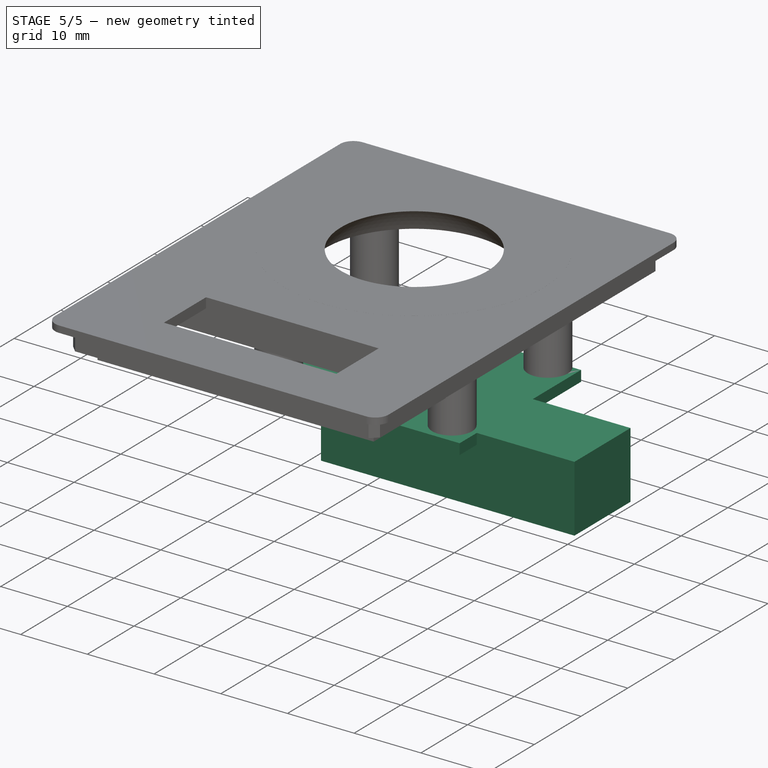
[diagram: stage 5 of 5 — iso view after this stage's code; geometry added in this stage tinted green]
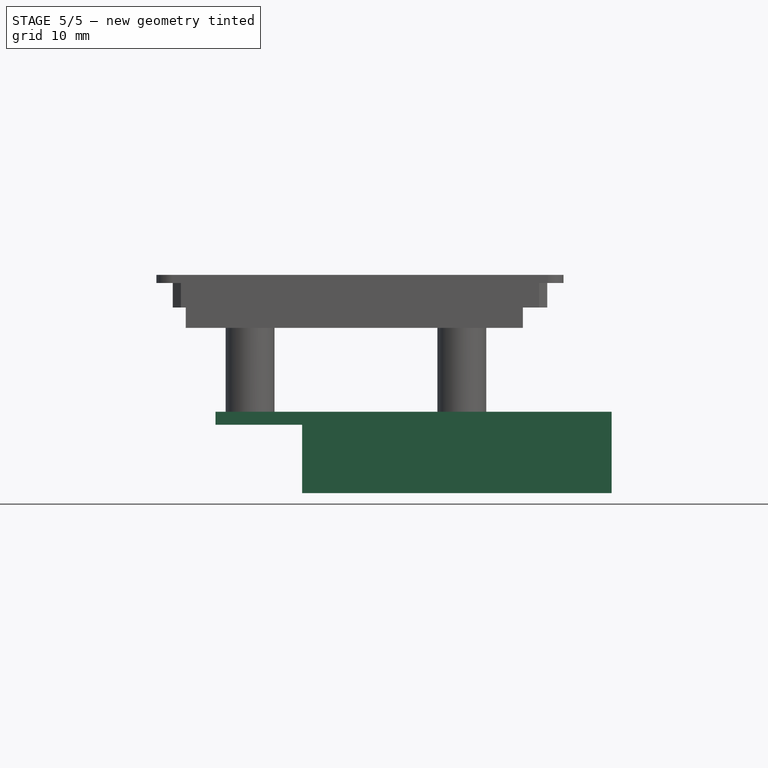
[diagram: stage 5 of 5 — front view after this stage's code; geometry added in this stage tinted green]
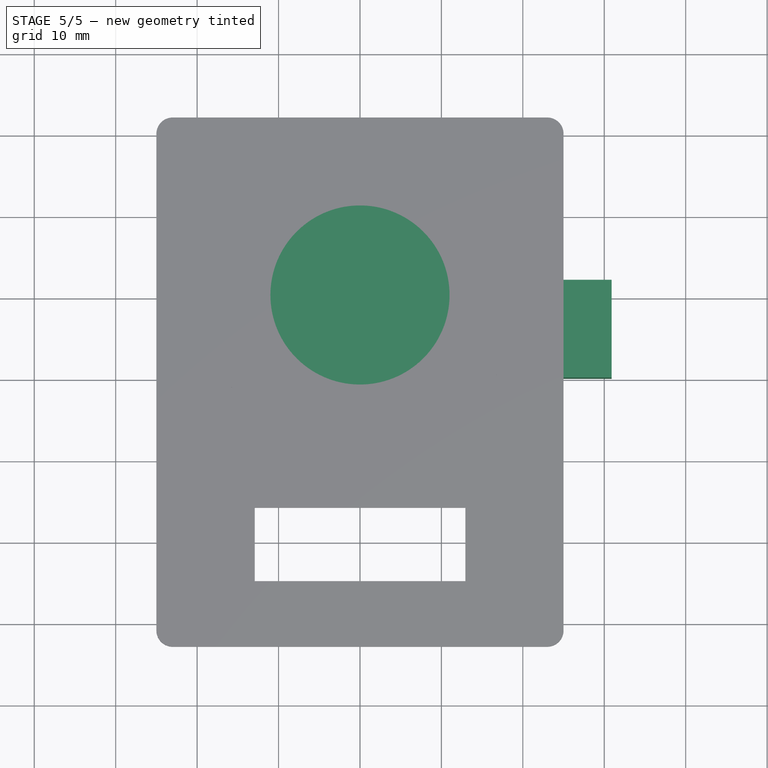
[diagram: stage 5 of 5 — top view after this stage's code; geometry added in this stage tinted green]
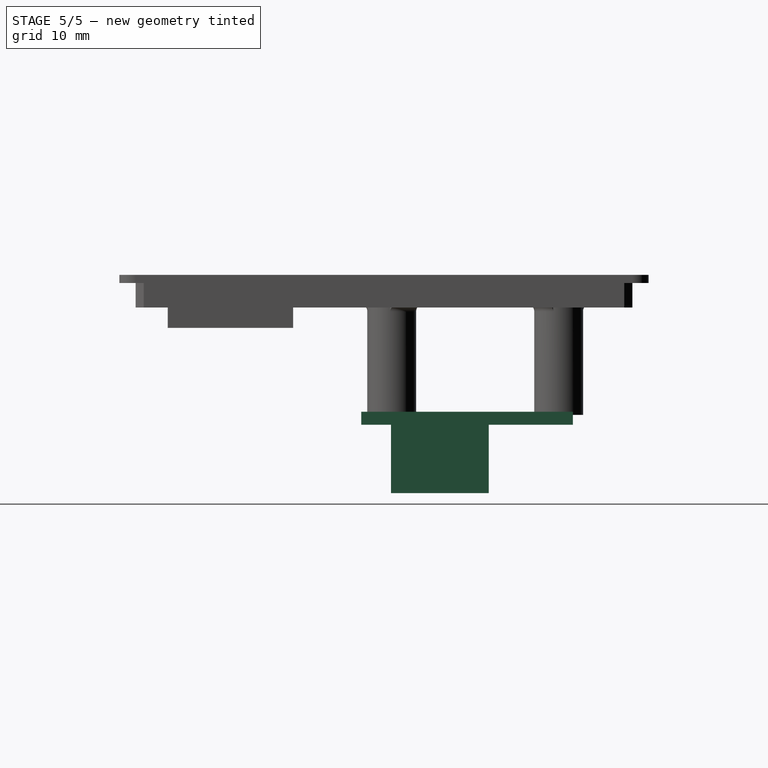
[diagram: stage 5 of 5 — right view after this stage's code; geometry added in this stage tinted green]
FEATURE [Part::Extrusion] Extrude003  label="DisplayModule"
  Base = -> Sketch003
  Dir = (0,0,1)
  DirMode = 2
  FaceMakerClass = Part::FaceMakerBullseye
  LengthFwd = 0
  LengthRev = 10
  Solid = true
  Symmetric = false
FEATURE [Part::Extrusion] Extrude001
  Base = -> Sketch
  Dir = (0,0,1)
  DirMode = 2
  FaceMakerClass = Part::FaceMakerBullseye
  LengthFwd = 0
  LengthRev = 1.6
  Solid = true
  Symmetric = false
FEATURE [Part::FeaturePython] Embed001  label="Final"  # WARN: FeaturePython — macro-defined, semantics opaque (R4)
  Base = -> Embed
  Tolerance = 0
  Tool = -> Fusion001
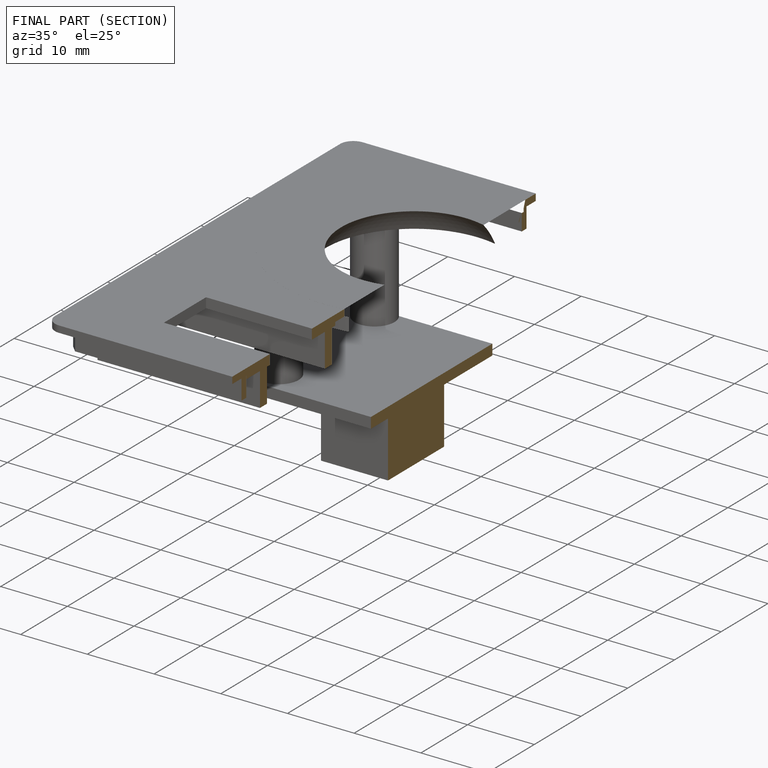
[diagram: finished part — half-section view (interior)]
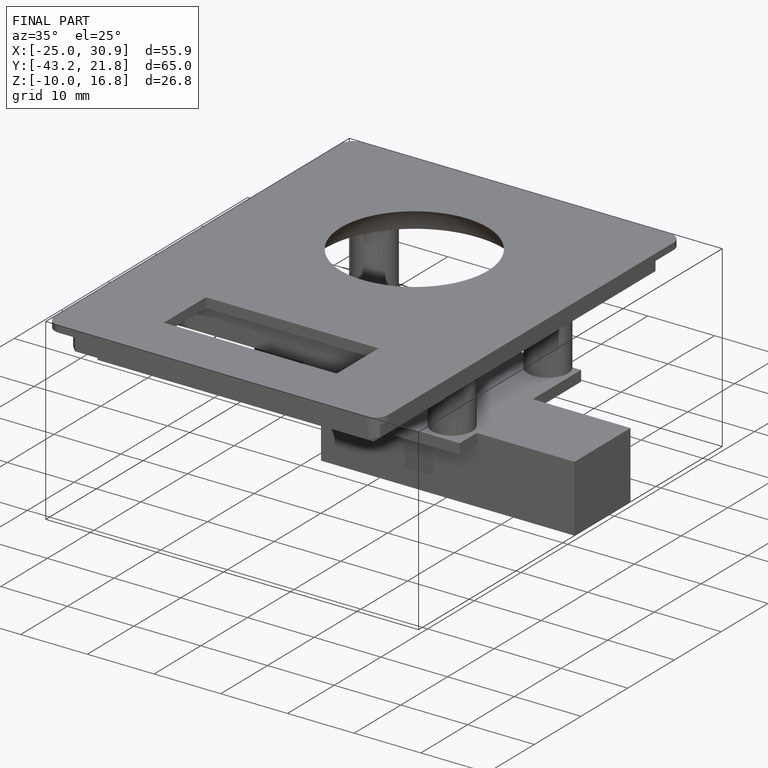
[diagram: finished part — iso view with bounding-box wireframe]
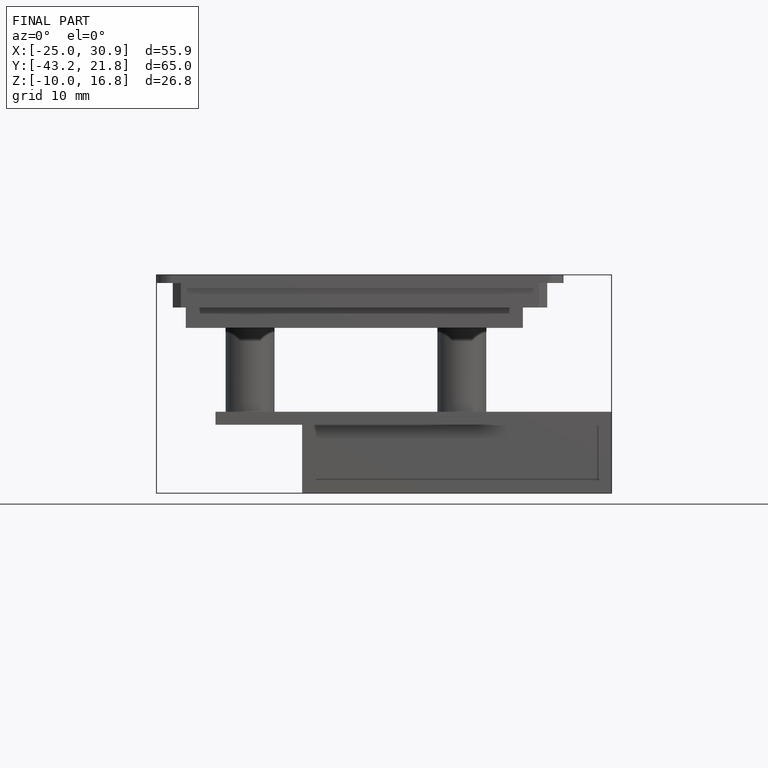
[diagram: finished part — front view with bounding-box wireframe]
